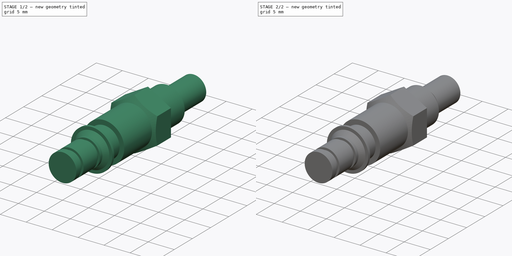
[diagram: build sequence overview — one tinted view per stage of 2, left to right]
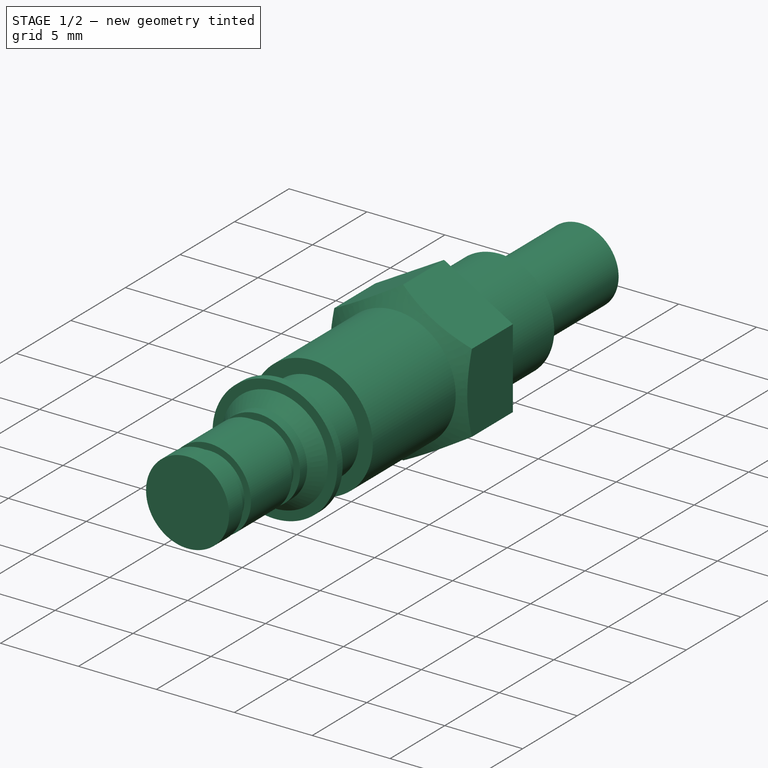
[diagram: stage 1 of 2 — iso view after this stage's code; geometry added in this stage tinted green]
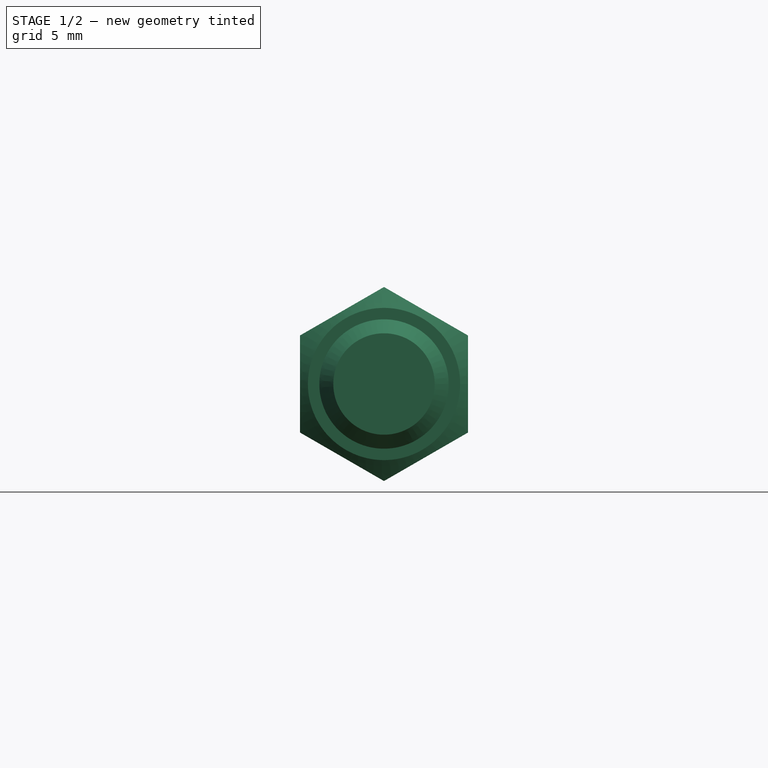
[diagram: stage 1 of 2 — front view after this stage's code; geometry added in this stage tinted green]
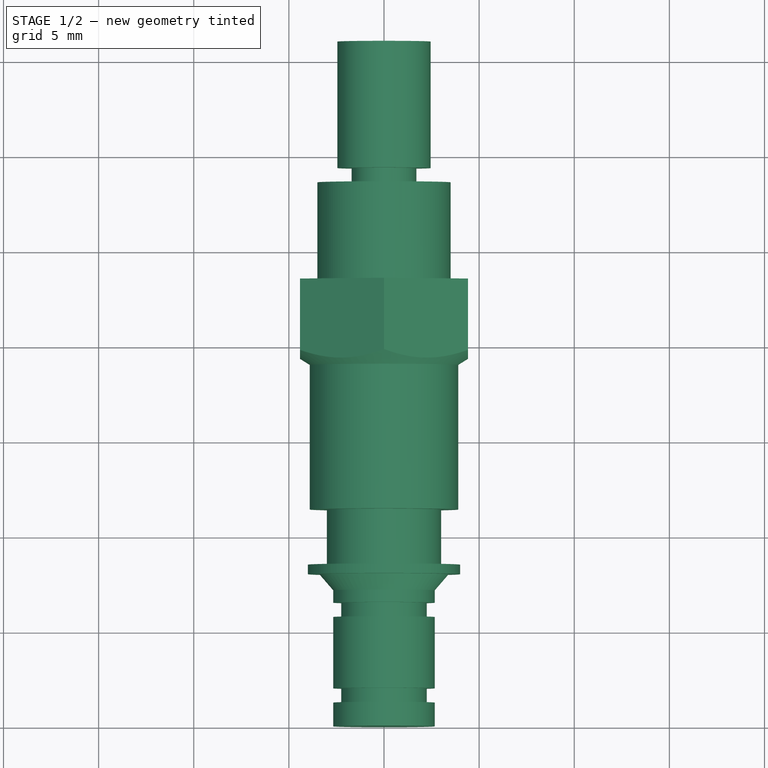
[diagram: stage 1 of 2 — top view after this stage's code; geometry added in this stage tinted green]
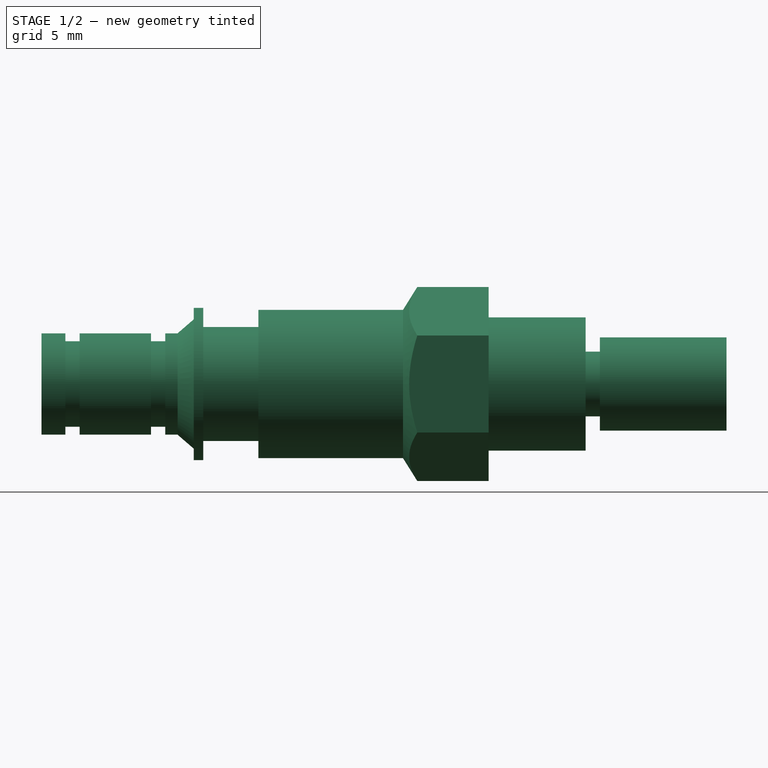
[diagram: stage 1 of 2 — right view after this stage's code; geometry added in this stage tinted green]
FCSTD DOCUMENT  (FreeCAD 0.19R22960 (Git))
Label: OTS-0001-00_CP40-nozzle-holder
License: All rights reserved
LicenseURL: http://en.wikipedia.org/wiki/All_rights_reserved
objects: Sketcher::SketchObject×2, PartDesign::Revolution×1, PartDesign::Plane×1, PartDesign::Pocket×1, PartDesign::Chamfer×1, PartDesign::Body×1
note: 10 computed .brp shape members not serialized (recipe doc carries the construction recipe); baked Part::Feature solids carry a one-line shape summary decoded from their .brp

FEATURE [Sketcher::SketchObject] Sketch
  MapMode = 5
  Support = -> [XY_Plane]
  sketch-geometry (27):
    g0: LineSegment StartX=0 StartY=0 StartZ=0 EndX=0 EndY=36 EndZ=0
    g1: LineSegment StartX=0 StartY=36 StartZ=0 EndX=2.45 EndY=36 EndZ=0
    g2: LineSegment StartX=2.45 StartY=36 StartZ=0 EndX=2.45 EndY=29.35 EndZ=0
    g3: LineSegment StartX=2.45 StartY=29.35 StartZ=0 EndX=1.7 EndY=29.35 EndZ=0
    g4: LineSegment StartX=1.7 StartY=29.35 StartZ=0 EndX=1.7 EndY=28.6 EndZ=0
    g5: LineSegment StartX=1.7 StartY=28.6 StartZ=0 EndX=3.5 EndY=28.6 EndZ=0
    g6: LineSegment StartX=3.5 StartY=28.6 StartZ=0 EndX=3.5 EndY=23.5 EndZ=0
    g7: LineSegment StartX=3.5 StartY=23.5 StartZ=0 EndX=5.1 EndY=23.5 EndZ=0
    g8: LineSegment StartX=5.1 StartY=23.5 StartZ=0 EndX=5.1 EndY=19.75 EndZ=0
    g9: LineSegment StartX=5.1 StartY=19.75 StartZ=0 EndX=3.9 EndY=19 EndZ=0
    g10: LineSegment StartX=3.9 StartY=19 StartZ=0 EndX=3.9 EndY=11.4 EndZ=0
    g11: LineSegment StartX=3.9 StartY=11.4 StartZ=0 EndX=3 EndY=11.4 EndZ=0
    g12: LineSegment StartX=3 StartY=11.4 StartZ=0 EndX=3 EndY=8.5 EndZ=0
    g13: LineSegment StartX=3 StartY=8.5 StartZ=0 EndX=4 EndY=8.5 EndZ=0
    g14: LineSegment StartX=4 StartY=8.5 StartZ=0 EndX=4 EndY=8 EndZ=0
    g15: LineSegment StartX=4 StartY=8 StartZ=0 EndX=3.4 EndY=8 EndZ=0
    g16: LineSegment StartX=3.4 StartY=8 StartZ=0 EndX=2.665 EndY=7.15 EndZ=0
    g17: LineSegment StartX=2.665 StartY=7.15 StartZ=0 EndX=2.665 EndY=6.5 EndZ=0
    g18: LineSegment StartX=2.665 StartY=6.5 StartZ=0 EndX=2.25 EndY=6.5 EndZ=0
    g19: LineSegment StartX=2.25 StartY=6.5 StartZ=0 EndX=2.25 EndY=5.75 EndZ=0
    g20: LineSegment StartX=2.25 StartY=5.75 StartZ=0 EndX=2.665 EndY=5.75 EndZ=0
    g21: LineSegment StartX=2.665 StartY=5.75 StartZ=0 EndX=2.665 EndY=2 EndZ=0
    g22: LineSegment StartX=2.665 StartY=2 StartZ=0 EndX=2.25 EndY=2 EndZ=0
    g23: LineSegment StartX=2.25 StartY=2 StartZ=0 EndX=2.25 EndY=1.25 EndZ=0
    g24: LineSegment StartX=2.25 StartY=1.25 StartZ=0 EndX=2.665 EndY=1.25 EndZ=0
    g25: LineSegment StartX=2.665 StartY=1.25 StartZ=0 EndX=2.665 EndY=0 EndZ=0
    g26: LineSegment StartX=2.665 StartY=0 StartZ=0 EndX=0 EndY=0 EndZ=0
  constraints (80):
    c: Coincident(g-1,g0)
    c: PointOnObject(g0,g-2)
    c: Coincident(g0,g1)
    c: Horizontal(g1)
    c: Coincident(g1,g2)
    c: Vertical(g2)
    c: Coincident(g2,g3)
    c: Coincident(g3,g4)
    c: Coincident(g4,g5)
    c: Horizontal(g5)
    c: Coincident(g5,g6)
    c: Vertical(g6)
    c: Coincident(g6,g7)
    c: Horizontal(g7)
    c: Coincident(g7,g8)
    c: Vertical(g8)
    c: Coincident(g8,g9)
    c: Coincident(g9,g10)
    c: Vertical(g10)
    c: Coincident(g10,g11)
    c: Horizontal(g11)
    c: Coincident(g11,g12)
    c: Coincident(g12,g13)
    c: Horizontal(g13)
    c: Coincident(g13,g14)
    c: Coincident(g14,g15)
    c: Coincident(g15,g16)
    c: Coincident(g16,g17)
    c: Vertical(g17)
    c: Coincident(g17,g18)
    c: Horizontal(g18)
    c: Coincident(g18,g19)
    c: Coincident(g19,g20)
    c: Coincident(g20,g21)
    c: Vertical(g21)
    c: Coincident(g21,g22)
    c: Coincident(g22,g23)
    c: Vertical(g23)
    c: Coincident(g23,g24)
    c: Horizontal(g24)
    c: Coincident(g24,g25)
    c: PointOnObject(g25,g-1)
    c: Vertical(g25)
    c: Coincident(g25,g26)
    c: Coincident(g26,g0)
    c: Vertical(g14)
    c: Vertical(g19)
    c: Vertical(g4)
    c: Horizontal(g3)
    c: Horizontal(g20)
    c: Horizontal(g22)
    c: Distance(g5,g0) = 3.5
    c: Distance(g7,g0) = 5.1
    c: Distance(g9,g0) = 3.9
    c: Distance(g11,g0) = 3
    c: Vertical(g12)
    c: Distance(g13,g0) = 4
    c: DistanceY(g14,g14) = 0.5
    c: PointOnObject(g20,g17)
    c: PointOnObject(g24,g21)
    c: Horizontal(g15)
    c: DistanceX(g15,g15) = 0.6
    c: Distance(g16,g0) = 2.665
    c: Distance(g3,g0) = 1.7
    c: DistanceY(g0,g16) = 7.15
    c: DistanceY(g0,g13) = 8.5
    c: DistanceY(g0,g24) = 1.25
    c: DistanceY(g0,g20) = 5.75
    c: DistanceY(g19,g19) = 0.75
    c: DistanceY(g23,g23) = 0.75
    c: DistanceY(g0,g1) = 36
    c: DistanceY(g0,g10) = 11.4
    c: DistanceY(g0,g9) = 19
    c: DistanceY(g0,g7) = 23.5
    c: DistanceY(g0,g5) = 28.6
    c: DistanceY(g4,g4) = 0.75
    c: DistanceX(g1,g1) = 2.45
    c: PointOnObject(g22,g19)
    c: DistanceX(g0,g23) = 2.25
    c: DistanceY(g8,g8) = 3.75
FEATURE [PartDesign::Revolution] Revolution
  Angle = 360
  Axis = (0,1,0)
  Base = (0,0,0)
  Profile = -> Sketch
  ReferenceAxis = -> Sketch [V_Axis]
  Reversed = true
FEATURE [PartDesign::Plane] DatumPlane
  Length = 60
  MapMode = 5
  Placement = pos=(0,23.5,0) rot=(0,0.707107,0.707107;3.14159rad)
  ResizeMode = 0
  Support = -> [Revolution]
  Width = 60
FEATURE [Sketcher::SketchObject] Sketch001
  ExternalGeometry = -> [Revolution]
  MapMode = 5
  Placement = pos=(0,23.5,0) rot=(0,0.707107,0.707107;3.14159rad)
  Support = -> [DatumPlane]
  sketch-geometry (8):
    g0: LineSegment StartX=4.41673 StartY=2.55 StartZ=0 EndX=0 EndY=5.1 EndZ=0
    g1: LineSegment StartX=0 StartY=5.1 StartZ=0 EndX=-4.41673 EndY=2.55 EndZ=0
    g2: LineSegment StartX=-4.41673 StartY=2.55 StartZ=0 EndX=-4.41673 EndY=-2.55 EndZ=0
    g3: LineSegment StartX=-4.41673 StartY=-2.55 StartZ=0 EndX=-9e-16 EndY=-5.1 EndZ=0
    g4: LineSegment StartX=-9e-16 StartY=-5.1 StartZ=0 EndX=4.41673 EndY=-2.55 EndZ=0
    g5: LineSegment StartX=4.41673 StartY=-2.55 StartZ=0 EndX=4.41673 EndY=2.55 EndZ=0
    g6: Circle [constr] CenterX=0 CenterY=0 CenterZ=0 NormalX=0 NormalY=0 NormalZ=1 AngleXU=0 Radius=5.1
    g7: Circle CenterX=0 CenterY=0 CenterZ=0 NormalX=0 NormalY=0 NormalZ=1 AngleXU=0 Radius=6
  constraints (18):
    c: Coincident(g0,g1)
    c: Coincident(g1,g2)
    c: Coincident(g2,g3)
    c: Coincident(g3,g4)
    c: Coincident(g4,g5)
    c: Coincident(g5,g0)
    c: Equal(g0, g1-g5) x5
    c: PointOnObject(g0,g6)
    c: PointOnObject(g1,g6)
    c: PointOnObject(g2,g6)
    c: PointOnObject(g3,g6)
    c: PointOnObject(g4,g6)
    c: PointOnObject(g5,g6)
    c: Coincident(g6,g-1)
    c: PointOnObject(g5,g-3)
    c: Vertical(g2)
    c: Coincident(g7,g-1)
    c: Radius(g7) = 6
FEATURE [PartDesign::Pocket] Pocket
  BaseFeature = -> Revolution
  Length = 5
  Length2 = 100
  Profile = -> Sketch001
  Type = 0
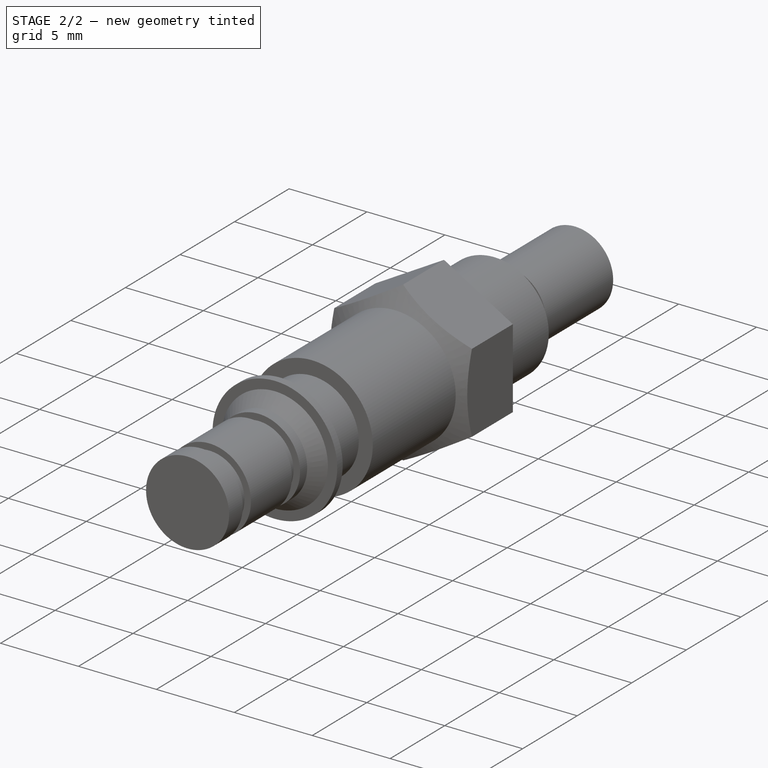
[diagram: stage 2 of 2 — iso view after this stage's code; geometry added in this stage tinted green]
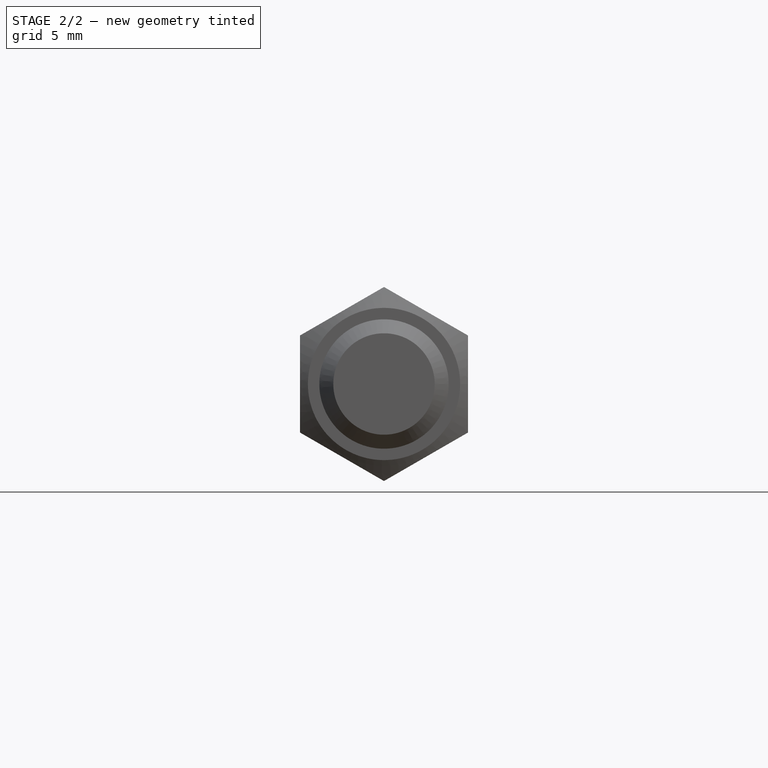
[diagram: stage 2 of 2 — front view after this stage's code; geometry added in this stage tinted green]
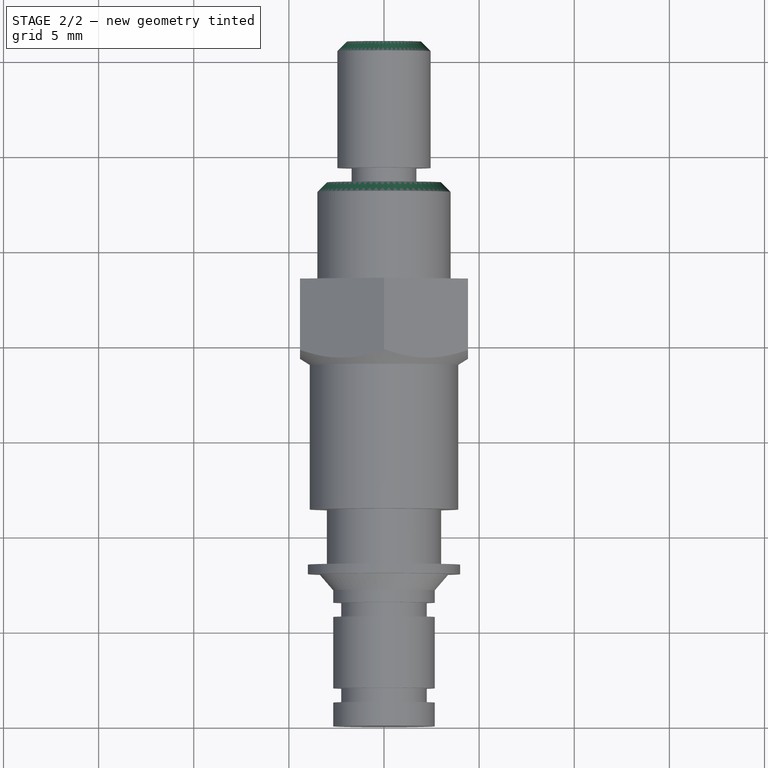
[diagram: stage 2 of 2 — top view after this stage's code; geometry added in this stage tinted green]
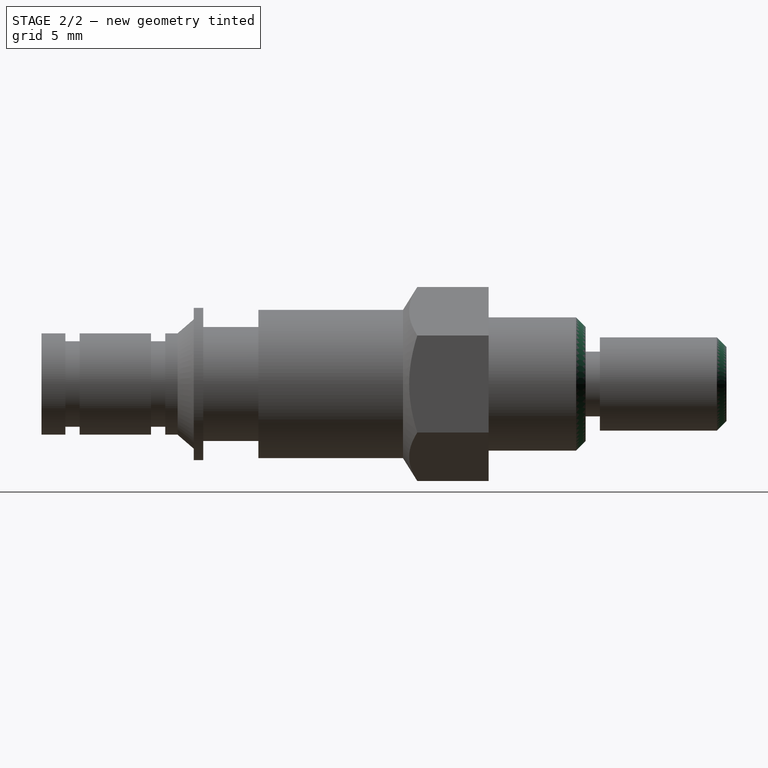
[diagram: stage 2 of 2 — right view after this stage's code; geometry added in this stage tinted green]
FEATURE [PartDesign::Chamfer] Chamfer
  Angle = 45
  Base = -> Pocket [Edge29,Edge52,Edge7,Edge1]
  BaseFeature = -> Pocket
  ChamferType = 0
  FlipDirection = false
  Size = 0.5
  Size2 = 1
  SupportTransform = false
FEATURE [PartDesign::Body] Body
  Group = -> [Sketch,Revolution,DatumPlane,Sketch001,Pocket,Chamfer]
  Origin = -> Origin
  Tip = -> Chamfer
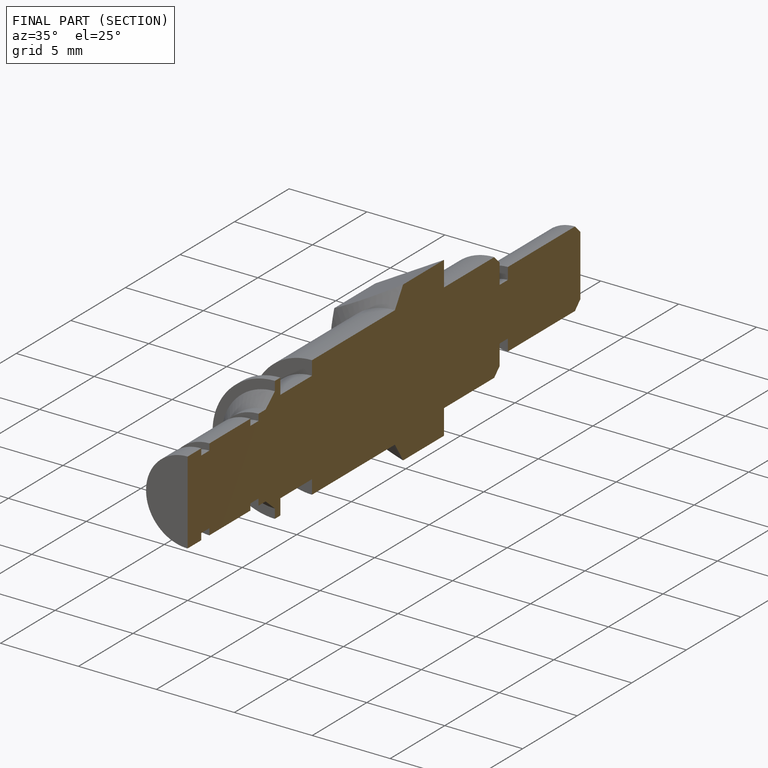
[diagram: finished part — half-section view (interior)]
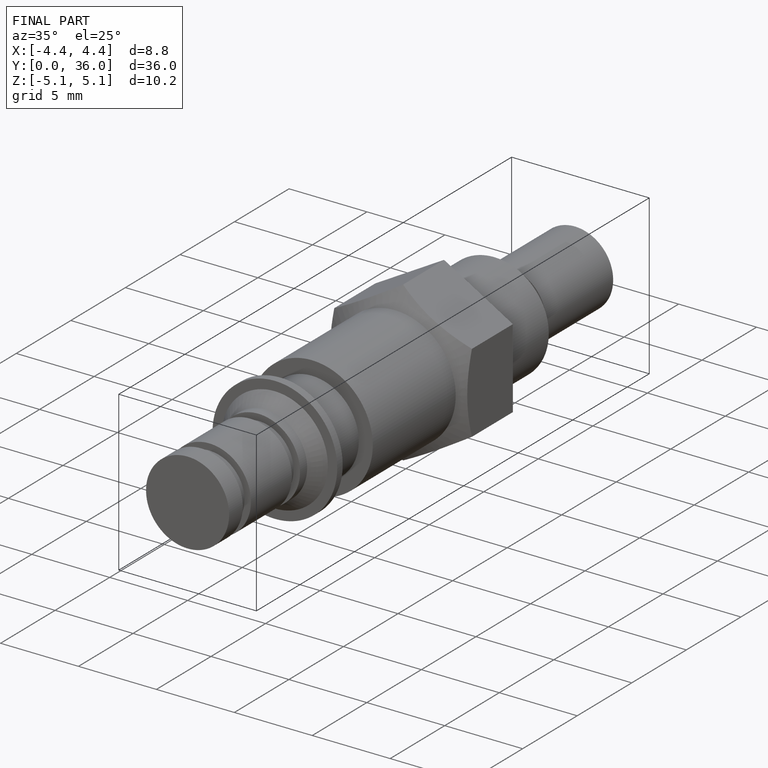
[diagram: finished part — iso view with bounding-box wireframe]
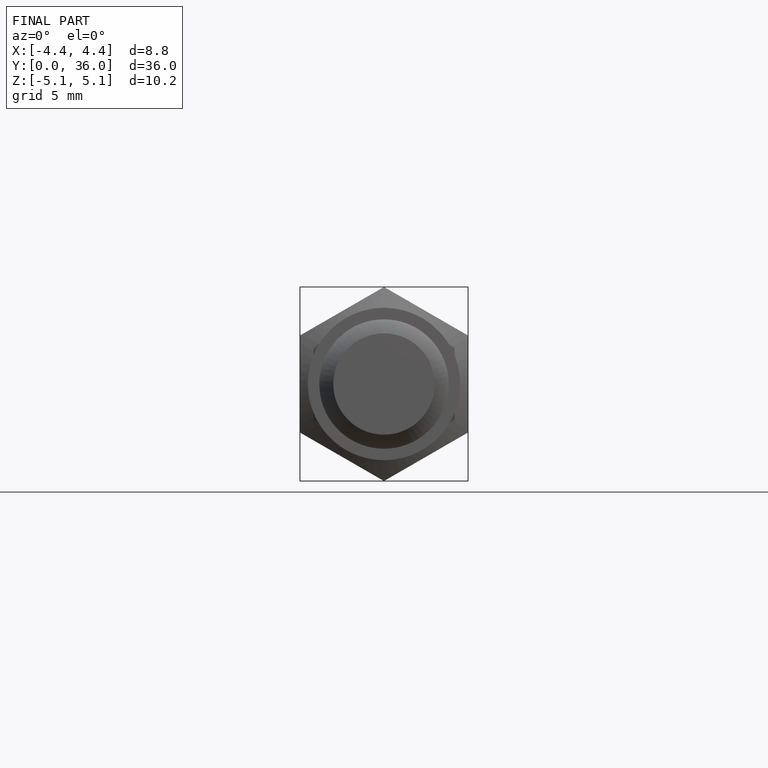
[diagram: finished part — front view with bounding-box wireframe]
